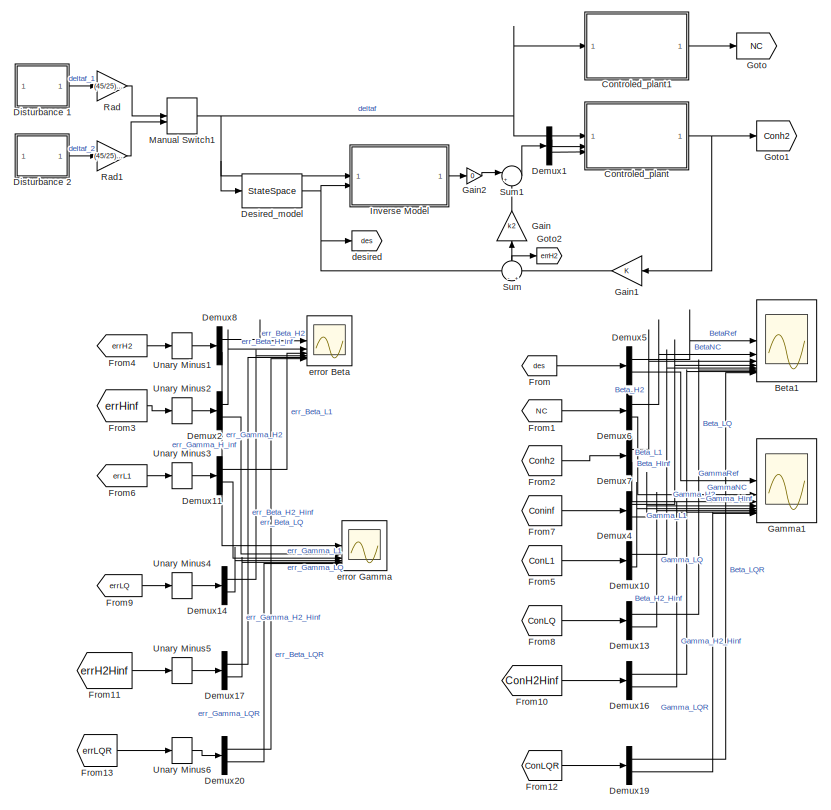
[diagram: root canvas - part 1/2, middle left region]
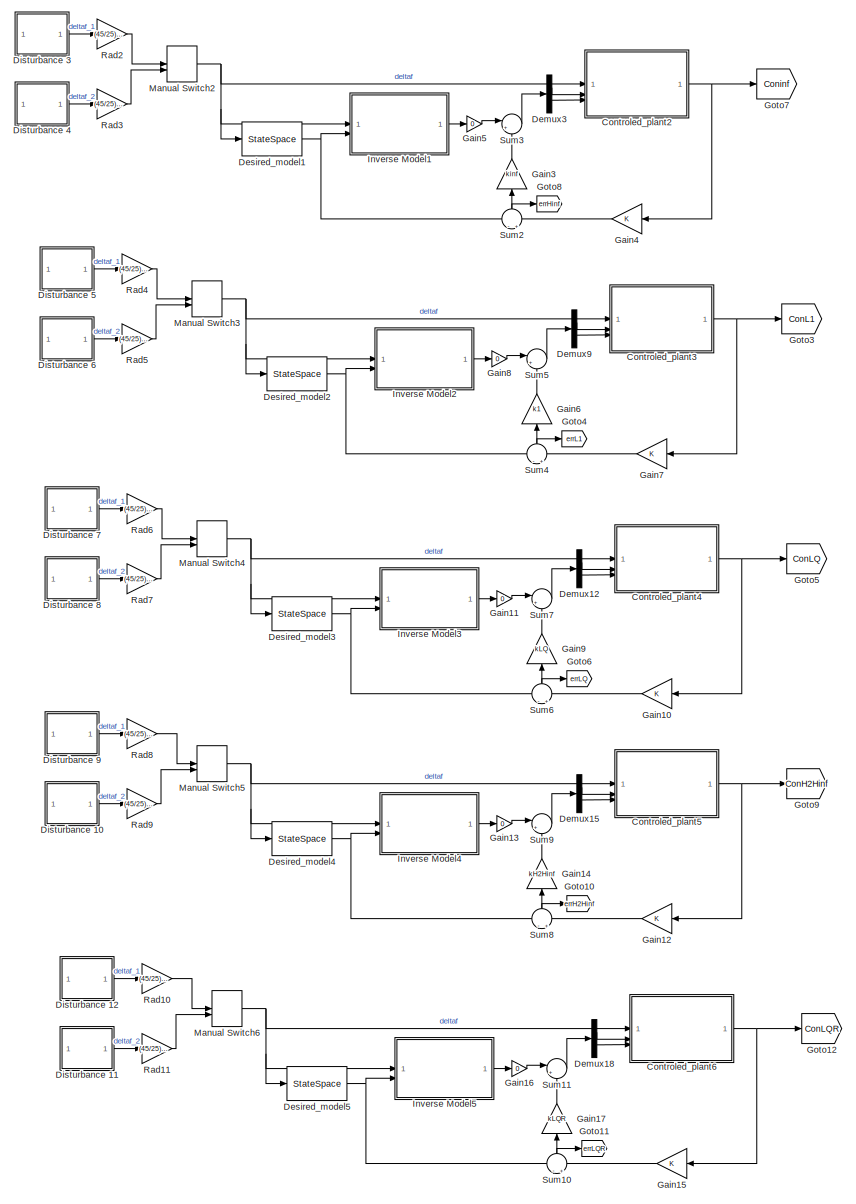
[diagram: root canvas - part 2/2, right side, full height]
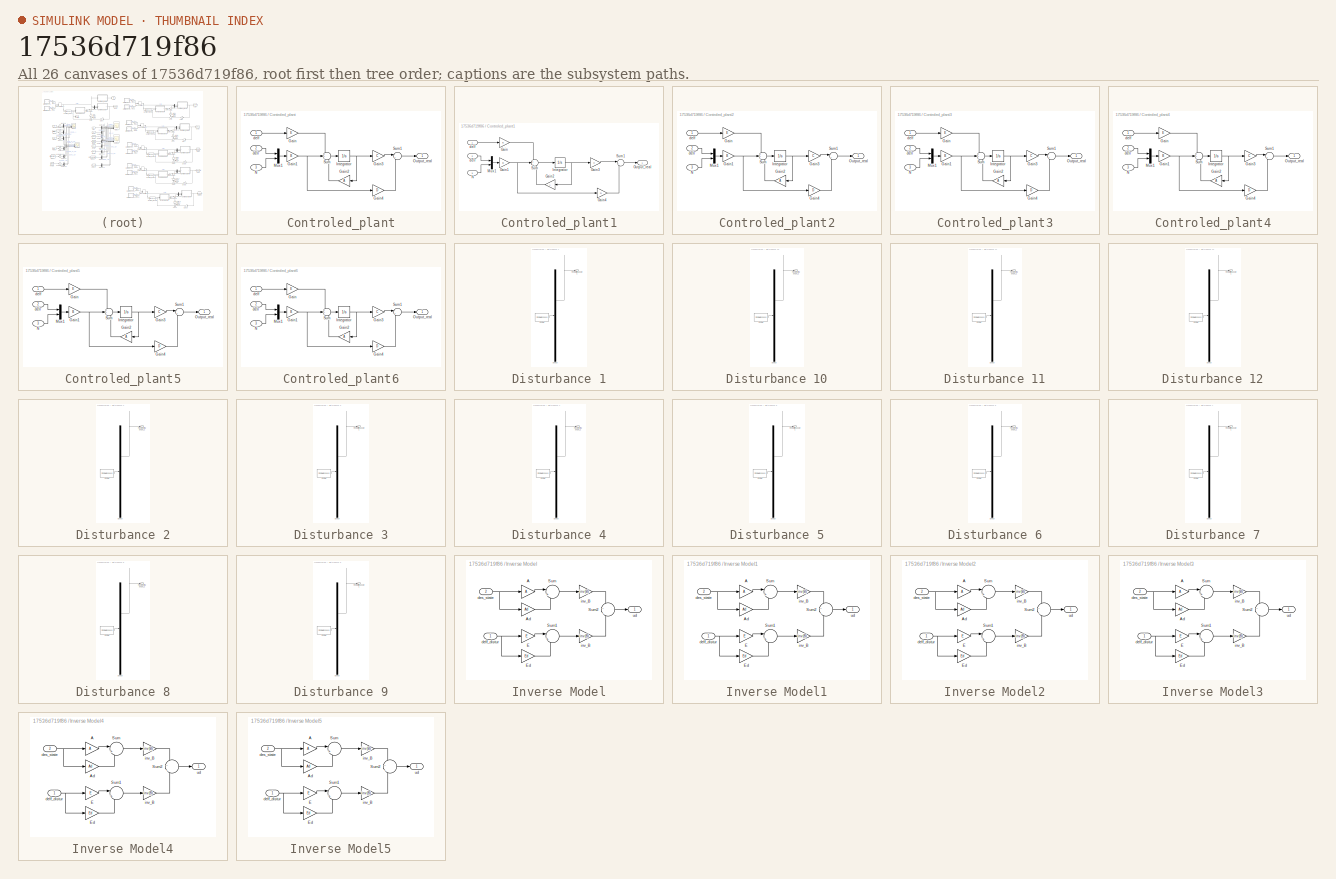
[diagram: thumbnail index - all 26 canvases of the model, root first then tree order]
MODEL slx_17536d719f86
KIND model
CONFIG AbsTol = auto
CONFIG EnableMultiTasking = off
CONFIG FixedStep = auto
CONFIG MaxStep = auto
CONFIG MinStep = auto
CONFIG RelTol = 1e-3
CONFIG SampleTimeConstraint = Unconstrained
CONFIG SolverName = VariableStepAuto
CONFIG StartTime = 0.0
CONFIG StopTime = 3
BLOCK [Scope] Beta1
  Floating = off
  NumInputPorts = 8
  ScopeSpecificationString = Simulink.scopes.TimeScopeBlockCfg('CurrentConfiguration', extmgr.ConfigurationSet(extmgr.Configuration('Core','General UI',true,'FigureColor',[1 1 1]),extmgr.Configuration('Core','Source UI',true),extmgr.Configuration('Sources','WiredSimulink',true,'DataLoggingVariableName','ScopeData1'),extmgr.Configuration('Visuals','Time Domain',true,'SerializedDisplays',{struct('MinYLimReal','-0.01402','MaxYLi...<+2376ch>
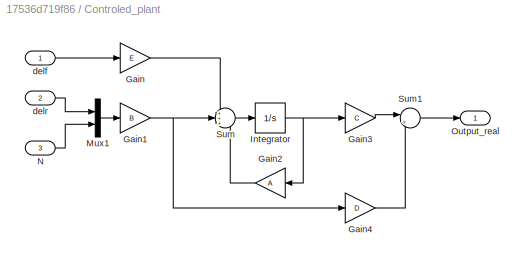
BLOCK [SubSystem] Controled_plant
BLOCK [Gain] Controled_plant/Gain
  Gain = E
  Multiplication = Matrix(K*u)
BLOCK [Gain] Controled_plant/Gain1
  Gain = B
  Multiplication = Matrix(K*u)
BLOCK [Gain] Controled_plant/Gain2
  Gain = A
  Multiplication = Matrix(K*u)
BLOCK [Gain] Controled_plant/Gain3
  Gain = C
  Multiplication = Matrix(K*u)
BLOCK [Gain] Controled_plant/Gain4
  Gain = D
  Multiplication = Matrix(K*u)
BLOCK [Integrator] Controled_plant/Integrator
  InitialCondition = x0
BLOCK [Mux] Controled_plant/Mux1
  DisplayOption = bar
  Inputs = 2
BLOCK [Inport] Controled_plant/N
  Port = 3
BLOCK [Outport] Controled_plant/Output_real
BLOCK [Sum] Controled_plant/Sum
  Inputs = +++
BLOCK [Sum] Controled_plant/Sum1
  Inputs = |++
BLOCK [Inport] Controled_plant/delf
BLOCK [Inport] Controled_plant/delr
  Port = 2
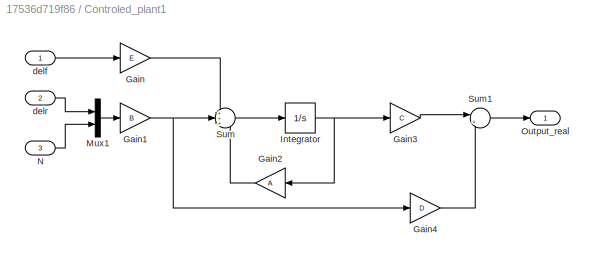
BLOCK [SubSystem] Controled_plant1
BLOCK [Gain] Controled_plant1/Gain
  Gain = E
  Multiplication = Matrix(K*u)
BLOCK [Gain] Controled_plant1/Gain1
  Gain = B
  Multiplication = Matrix(K*u)
BLOCK [Gain] Controled_plant1/Gain2
  Gain = A
  Multiplication = Matrix(K*u)
BLOCK [Gain] Controled_plant1/Gain3
  Gain = C
  Multiplication = Matrix(K*u)
BLOCK [Gain] Controled_plant1/Gain4
  Gain = D
  Multiplication = Matrix(K*u)
BLOCK [Integrator] Controled_plant1/Integrator
  InitialCondition = x0
BLOCK [Mux] Controled_plant1/Mux1
  DisplayOption = bar
  Inputs = 2
BLOCK [Inport] Controled_plant1/N
  Port = 3
BLOCK [Outport] Controled_plant1/Output_real
BLOCK [Sum] Controled_plant1/Sum
  Inputs = +++
BLOCK [Sum] Controled_plant1/Sum1
  Inputs = |++
BLOCK [Inport] Controled_plant1/delf
BLOCK [Inport] Controled_plant1/delr
  Port = 2
BLOCK [SubSystem] Controled_plant2
BLOCK [Gain] Controled_plant2/Gain
  Gain = E
  Multiplication = Matrix(K*u)
BLOCK [Gain] Controled_plant2/Gain1
  Gain = B
  Multiplication = Matrix(K*u)
BLOCK [Gain] Controled_plant2/Gain2
  Gain = A
  Multiplication = Matrix(K*u)
BLOCK [Gain] Controled_plant2/Gain3
  Gain = C
  Multiplication = Matrix(K*u)
BLOCK [Gain] Controled_plant2/Gain4
  Gain = D
  Multiplication = Matrix(K*u)
BLOCK [Integrator] Controled_plant2/Integrator
  InitialCondition = x0
BLOCK [Mux] Controled_plant2/Mux1
  DisplayOption = bar
  Inputs = 2
BLOCK [Inport] Controled_plant2/N
  Port = 3
BLOCK [Outport] Controled_plant2/Output_real
BLOCK [Sum] Controled_plant2/Sum
  Inputs = +++
BLOCK [Sum] Controled_plant2/Sum1
  Inputs = |++
BLOCK [Inport] Controled_plant2/delf
BLOCK [Inport] Controled_plant2/delr
  Port = 2
BLOCK [SubSystem] Controled_plant3
BLOCK [Gain] Controled_plant3/Gain
  Gain = E
  Multiplication = Matrix(K*u)
BLOCK [Gain] Controled_plant3/Gain1
  Gain = B
  Multiplication = Matrix(K*u)
BLOCK [Gain] Controled_plant3/Gain2
  Gain = A
  Multiplication = Matrix(K*u)
BLOCK [Gain] Controled_plant3/Gain3
  Gain = C
  Multiplication = Matrix(K*u)
BLOCK [Gain] Controled_plant3/Gain4
  Gain = D
  Multiplication = Matrix(K*u)
BLOCK [Integrator] Controled_plant3/Integrator
  InitialCondition = x0
BLOCK [Mux] Controled_plant3/Mux1
  DisplayOption = bar
  Inputs = 2
BLOCK [Inport] Controled_plant3/N
  Port = 3
BLOCK [Outport] Controled_plant3/Output_real
BLOCK [Sum] Controled_plant3/Sum
  Inputs = +++
BLOCK [Sum] Controled_plant3/Sum1
  Inputs = |++
BLOCK [Inport] Controled_plant3/delf
BLOCK [Inport] Controled_plant3/delr
  Port = 2
BLOCK [SubSystem] Controled_plant4
BLOCK [Gain] Controled_plant4/Gain
  Gain = E
  Multiplication = Matrix(K*u)
BLOCK [Gain] Controled_plant4/Gain1
  Gain = B
  Multiplication = Matrix(K*u)
BLOCK [Gain] Controled_plant4/Gain2
  Gain = A
  Multiplication = Matrix(K*u)
BLOCK [Gain] Controled_plant4/Gain3
  Gain = C
  Multiplication = Matrix(K*u)
BLOCK [Gain] Controled_plant4/Gain4
  Gain = D
  Multiplication = Matrix(K*u)
BLOCK [Integrator] Controled_plant4/Integrator
  InitialCondition = x0
BLOCK [Mux] Controled_plant4/Mux1
  DisplayOption = bar
  Inputs = 2
BLOCK [Inport] Controled_plant4/N
  Port = 3
BLOCK [Outport] Controled_plant4/Output_real
BLOCK [Sum] Controled_plant4/Sum
  Inputs = +++
BLOCK [Sum] Controled_plant4/Sum1
  Inputs = |++
BLOCK [Inport] Controled_plant4/delf
BLOCK [Inport] Controled_plant4/delr
  Port = 2
BLOCK [SubSystem] Controled_plant5
BLOCK [Gain] Controled_plant5/Gain
  Gain = E
  Multiplication = Matrix(K*u)
BLOCK [Gain] Controled_plant5/Gain1
  Gain = B
  Multiplication = Matrix(K*u)
BLOCK [Gain] Controled_plant5/Gain2
  Gain = A
  Multiplication = Matrix(K*u)
BLOCK [Gain] Controled_plant5/Gain3
  Gain = C
  Multiplication = Matrix(K*u)
BLOCK [Gain] Controled_plant5/Gain4
  Gain = D
  Multiplication = Matrix(K*u)
BLOCK [Integrator] Controled_plant5/Integrator
  InitialCondition = x0
BLOCK [Mux] Controled_plant5/Mux1
  DisplayOption = bar
  Inputs = 2
BLOCK [Inport] Controled_plant5/N
  Port = 3
BLOCK [Outport] Controled_plant5/Output_real
BLOCK [Sum] Controled_plant5/Sum
  Inputs = +++
BLOCK [Sum] Controled_plant5/Sum1
  Inputs = |++
BLOCK [Inport] Controled_plant5/delf
BLOCK [Inport] Controled_plant5/delr
  Port = 2
BLOCK [SubSystem] Controled_plant6
BLOCK [Gain] Controled_plant6/Gain
  Gain = E
  Multiplication = Matrix(K*u)
BLOCK [Gain] Controled_plant6/Gain1
  Gain = B
  Multiplication = Matrix(K*u)
BLOCK [Gain] Controled_plant6/Gain2
  Gain = A
  Multiplication = Matrix(K*u)
BLOCK [Gain] Controled_plant6/Gain3
  Gain = C
  Multiplication = Matrix(K*u)
BLOCK [Gain] Controled_plant6/Gain4
  Gain = D
  Multiplication = Matrix(K*u)
BLOCK [Integrator] Controled_plant6/Integrator
  InitialCondition = x0
BLOCK [Mux] Controled_plant6/Mux1
  DisplayOption = bar
  Inputs = 2
BLOCK [Inport] Controled_plant6/N
  Port = 3
BLOCK [Outport] Controled_plant6/Output_real
BLOCK [Sum] Controled_plant6/Sum
  Inputs = +++
BLOCK [Sum] Controled_plant6/Sum1
  Inputs = |++
BLOCK [Inport] Controled_plant6/delf
BLOCK [Inport] Controled_plant6/delr
  Port = 2
BLOCK [Demux] Demux1
  Outputs = 2
BLOCK [Demux] Demux10
  Outputs = 2
BLOCK [Demux] Demux11
  Outputs = 2
BLOCK [Demux] Demux12
  Outputs = 2
BLOCK [Demux] Demux13
  Outputs = 2
BLOCK [Demux] Demux14
  Outputs = 2
BLOCK [Demux] Demux15
  Outputs = 2
BLOCK [Demux] Demux16
  Outputs = 2
BLOCK [Demux] Demux17
  Outputs = 2
BLOCK [Demux] Demux18
  Outputs = 2
BLOCK [Demux] Demux19
  Outputs = 2
BLOCK [Demux] Demux2
  Outputs = 2
BLOCK [Demux] Demux20
  Outputs = 2
BLOCK [Demux] Demux3
  Outputs = 2
BLOCK [Demux] Demux4
  Outputs = 2
BLOCK [Demux] Demux5
  Outputs = 2
BLOCK [Demux] Demux6
  Outputs = 2
BLOCK [Demux] Demux7
  Outputs = 2
BLOCK [Demux] Demux8
  Outputs = 2
BLOCK [Demux] Demux9
  Outputs = 2
BLOCK [StateSpace] Desired_model
  A = Ad
  B = Ed
  C = [1,0;0,1]
  D = zeros(2,1)
  InitialCondition = 0
BLOCK [StateSpace] Desired_model1
  A = Ad
  B = Ed
  C = [1,0;0,1]
  D = zeros(2,1)
  InitialCondition = 0
BLOCK [StateSpace] Desired_model2
  A = Ad
  B = Ed
  C = [1,0;0,1]
  D = zeros(2,1)
  InitialCondition = 0
BLOCK [StateSpace] Desired_model3
  A = Ad
  B = Ed
  C = [1,0;0,1]
  D = zeros(2,1)
  InitialCondition = 0
BLOCK [StateSpace] Desired_model4
  A = Ad
  B = Ed
  C = [1,0;0,1]
  D = zeros(2,1)
  InitialCondition = 0
BLOCK [StateSpace] Desired_model5
  A = Ad
  B = Ed
  C = [1,0;0,1]
  D = zeros(2,1)
  InitialCondition = 0
BLOCK [SubSystem] Disturbance 1
  ClipboardFcn = sigbuilder_block('clipboard');
  CloseFcn = sigbuilder_block('close');
  ContinueFcn = sigbuilder_block('continue');
  CopyFcn = sigbuilder_block('copy');
  DeleteFcn = sigbuilder_block('delete');
  LoadFcn = sigbuilder_block('load');
  MaskHideContents = on
  ModelCloseFcn = sigbuilder_block('modelClose');
  NameChangeFcn = sigbuilder_block('namechange');
  OpenFcn = sigbuilder_block('open',[265.8 141.6 550.8 400.2 ]);
  PauseFcn = sigbuilder_block('pause');
  PreSaveFcn = sigbuilder_block('preSave');
  StartFcn = sigbuilder_block('start');
  StopFcn = sigbuilder_block('stop');
  Tag = STV Subsys
BLOCK [Demux] Disturbance 1/Demux
  DisplayOption = none
  Outputs = 1
  Tag = STV Demux
BLOCK [FromWorkspace] Disturbance 1/FromWs
  Tag = STV FromWs
  VariableName = tuvar
BLOCK [Outport] Disturbance 1/Front sterring angle 1
  Tag = STV Outport
BLOCK [SubSystem] Disturbance 10
  ClipboardFcn = sigbuilder_block('clipboard');
  CloseFcn = sigbuilder_block('close');
  ContinueFcn = sigbuilder_block('continue');
  CopyFcn = sigbuilder_block('copy');
  DeleteFcn = sigbuilder_block('delete');
  LoadFcn = sigbuilder_block('load');
  MaskHideContents = on
  ModelCloseFcn = sigbuilder_block('modelClose');
  NameChangeFcn = sigbuilder_block('namechange');
  OpenFcn = sigbuilder_block('open',[265.8 141.6 550.8 400.2 ]);
  PauseFcn = sigbuilder_block('pause');
  PreSaveFcn = sigbuilder_block('preSave');
  StartFcn = sigbuilder_block('start');
  StopFcn = sigbuilder_block('stop');
  Tag = STV Subsys
BLOCK [Demux] Disturbance 10/Demux
  DisplayOption = none
  Outputs = 1
  Tag = STV Demux
BLOCK [FromWorkspace] Disturbance 10/FromWs
  Tag = STV FromWs
  VariableName = tuvar
BLOCK [Outport] Disturbance 10/Front steering angel_2
  Tag = STV Outport
BLOCK [SubSystem] Disturbance 11
  ClipboardFcn = sigbuilder_block('clipboard');
  CloseFcn = sigbuilder_block('close');
  ContinueFcn = sigbuilder_block('continue');
  CopyFcn = sigbuilder_block('copy');
  DeleteFcn = sigbuilder_block('delete');
  LoadFcn = sigbuilder_block('load');
  MaskHideContents = on
  ModelCloseFcn = sigbuilder_block('modelClose');
  NameChangeFcn = sigbuilder_block('namechange');
  OpenFcn = sigbuilder_block('open',[265.8 141.6 550.8 400.2 ]);
  PauseFcn = sigbuilder_block('pause');
  PreSaveFcn = sigbuilder_block('preSave');
  StartFcn = sigbuilder_block('start');
  StopFcn = sigbuilder_block('stop');
  Tag = STV Subsys
BLOCK [Demux] Disturbance 11/Demux
  DisplayOption = none
  Outputs = 1
  Tag = STV Demux
BLOCK [FromWorkspace] Disturbance 11/FromWs
  Tag = STV FromWs
  VariableName = tuvar
BLOCK [Outport] Disturbance 11/Front steering angel_2
  Tag = STV Outport
BLOCK [SubSystem] Disturbance 12
  ClipboardFcn = sigbuilder_block('clipboard');
  CloseFcn = sigbuilder_block('close');
  ContinueFcn = sigbuilder_block('continue');
  CopyFcn = sigbuilder_block('copy');
  DeleteFcn = sigbuilder_block('delete');
  LoadFcn = sigbuilder_block('load');
  MaskHideContents = on
  ModelCloseFcn = sigbuilder_block('modelClose');
  NameChangeFcn = sigbuilder_block('namechange');
  OpenFcn = sigbuilder_block('open',[265.8 141.6 550.8 400.2 ]);
  PauseFcn = sigbuilder_block('pause');
  PreSaveFcn = sigbuilder_block('preSave');
  StartFcn = sigbuilder_block('start');
  StopFcn = sigbuilder_block('stop');
  Tag = STV Subsys
BLOCK [Demux] Disturbance 12/Demux
  DisplayOption = none
  Outputs = 1
  Tag = STV Demux
BLOCK [FromWorkspace] Disturbance 12/FromWs
  Tag = STV FromWs
  VariableName = tuvar
BLOCK [Outport] Disturbance 12/Front sterring angle 1
  Tag = STV Outport
BLOCK [SubSystem] Disturbance 2
  ClipboardFcn = sigbuilder_block('clipboard');
  CloseFcn = sigbuilder_block('close');
  ContinueFcn = sigbuilder_block('continue');
  CopyFcn = sigbuilder_block('copy');
  DeleteFcn = sigbuilder_block('delete');
  LoadFcn = sigbuilder_block('load');
  MaskHideContents = on
  ModelCloseFcn = sigbuilder_block('modelClose');
  NameChangeFcn = sigbuilder_block('namechange');
  OpenFcn = sigbuilder_block('open',[265.8 141.6 550.8 400.2 ]);
  PauseFcn = sigbuilder_block('pause');
  PreSaveFcn = sigbuilder_block('preSave');
  StartFcn = sigbuilder_block('start');
  StopFcn = sigbuilder_block('stop');
  Tag = STV Subsys
BLOCK [Demux] Disturbance 2/Demux
  DisplayOption = none
  Outputs = 1
  Tag = STV Demux
BLOCK [FromWorkspace] Disturbance 2/FromWs
  Tag = STV FromWs
  VariableName = tuvar
BLOCK [Outport] Disturbance 2/Front steering angel_2
  Tag = STV Outport
BLOCK [SubSystem] Disturbance 3
  ClipboardFcn = sigbuilder_block('clipboard');
  CloseFcn = sigbuilder_block('close');
  ContinueFcn = sigbuilder_block('continue');
  CopyFcn = sigbuilder_block('copy');
  DeleteFcn = sigbuilder_block('delete');
  LoadFcn = sigbuilder_block('load');
  MaskHideContents = on
  ModelCloseFcn = sigbuilder_block('modelClose');
  NameChangeFcn = sigbuilder_block('namechange');
  OpenFcn = sigbuilder_block('open',[265.8 141.6 550.8 400.2 ]);
  PauseFcn = sigbuilder_block('pause');
  PreSaveFcn = sigbuilder_block('preSave');
  StartFcn = sigbuilder_block('start');
  StopFcn = sigbuilder_block('stop');
  Tag = STV Subsys
BLOCK [Demux] Disturbance 3/Demux
  DisplayOption = none
  Outputs = 1
  Tag = STV Demux
BLOCK [FromWorkspace] Disturbance 3/FromWs
  Tag = STV FromWs
  VariableName = tuvar
BLOCK [Outport] Disturbance 3/Front sterring angle 1
  Tag = STV Outport
BLOCK [SubSystem] Disturbance 4
  ClipboardFcn = sigbuilder_block('clipboard');
  CloseFcn = sigbuilder_block('close');
  ContinueFcn = sigbuilder_block('continue');
  CopyFcn = sigbuilder_block('copy');
  DeleteFcn = sigbuilder_block('delete');
  LoadFcn = sigbuilder_block('load');
  MaskHideContents = on
  ModelCloseFcn = sigbuilder_block('modelClose');
  NameChangeFcn = sigbuilder_block('namechange');
  OpenFcn = sigbuilder_block('open',[265.8 141.6 550.8 400.2 ]);
  PauseFcn = sigbuilder_block('pause');
  PreSaveFcn = sigbuilder_block('preSave');
  StartFcn = sigbuilder_block('start');
  StopFcn = sigbuilder_block('stop');
  Tag = STV Subsys
BLOCK [Demux] Disturbance 4/Demux
  DisplayOption = none
  Outputs = 1
  Tag = STV Demux
BLOCK [FromWorkspace] Disturbance 4/FromWs
  Tag = STV FromWs
  VariableName = tuvar
BLOCK [Outport] Disturbance 4/Front steering angel_2
  Tag = STV Outport
BLOCK [SubSystem] Disturbance 5
  ClipboardFcn = sigbuilder_block('clipboard');
  CloseFcn = sigbuilder_block('close');
  ContinueFcn = sigbuilder_block('continue');
  CopyFcn = sigbuilder_block('copy');
  DeleteFcn = sigbuilder_block('delete');
  LoadFcn = sigbuilder_block('load');
  MaskHideContents = on
  ModelCloseFcn = sigbuilder_block('modelClose');
  NameChangeFcn = sigbuilder_block('namechange');
  OpenFcn = sigbuilder_block('open',[265.8 141.6 550.8 400.2 ]);
  PauseFcn = sigbuilder_block('pause');
  PreSaveFcn = sigbuilder_block('preSave');
  StartFcn = sigbuilder_block('start');
  StopFcn = sigbuilder_block('stop');
  Tag = STV Subsys
BLOCK [Demux] Disturbance 5/Demux
  DisplayOption = none
  Outputs = 1
  Tag = STV Demux
BLOCK [FromWorkspace] Disturbance 5/FromWs
  Tag = STV FromWs
  VariableName = tuvar
BLOCK [Outport] Disturbance 5/Front sterring angle 1
  Tag = STV Outport
BLOCK [SubSystem] Disturbance 6
  ClipboardFcn = sigbuilder_block('clipboard');
  CloseFcn = sigbuilder_block('close');
  ContinueFcn = sigbuilder_block('continue');
  CopyFcn = sigbuilder_block('copy');
  DeleteFcn = sigbuilder_block('delete');
  LoadFcn = sigbuilder_block('load');
  MaskHideContents = on
  ModelCloseFcn = sigbuilder_block('modelClose');
  NameChangeFcn = sigbuilder_block('namechange');
  OpenFcn = sigbuilder_block('open',[265.8 141.6 550.8 400.2 ]);
  PauseFcn = sigbuilder_block('pause');
  PreSaveFcn = sigbuilder_block('preSave');
  StartFcn = sigbuilder_block('start');
  StopFcn = sigbuilder_block('stop');
  Tag = STV Subsys
BLOCK [Demux] Disturbance 6/Demux
  DisplayOption = none
  Outputs = 1
  Tag = STV Demux
BLOCK [FromWorkspace] Disturbance 6/FromWs
  Tag = STV FromWs
  VariableName = tuvar
BLOCK [Outport] Disturbance 6/Front steering angel_2
  Tag = STV Outport
BLOCK [SubSystem] Disturbance 7
  ClipboardFcn = sigbuilder_block('clipboard');
  CloseFcn = sigbuilder_block('close');
  ContinueFcn = sigbuilder_block('continue');
  CopyFcn = sigbuilder_block('copy');
  DeleteFcn = sigbuilder_block('delete');
  LoadFcn = sigbuilder_block('load');
  MaskHideContents = on
  ModelCloseFcn = sigbuilder_block('modelClose');
  NameChangeFcn = sigbuilder_block('namechange');
  OpenFcn = sigbuilder_block('open',[265.8 141.6 550.8 400.2 ]);
  PauseFcn = sigbuilder_block('pause');
  PreSaveFcn = sigbuilder_block('preSave');
  StartFcn = sigbuilder_block('start');
  StopFcn = sigbuilder_block('stop');
  Tag = STV Subsys
BLOCK [Demux] Disturbance 7/Demux
  DisplayOption = none
  Outputs = 1
  Tag = STV Demux
BLOCK [FromWorkspace] Disturbance 7/FromWs
  Tag = STV FromWs
  VariableName = tuvar
BLOCK [Outport] Disturbance 7/Front sterring angle 1
  Tag = STV Outport
BLOCK [SubSystem] Disturbance 8
  ClipboardFcn = sigbuilder_block('clipboard');
  CloseFcn = sigbuilder_block('close');
  ContinueFcn = sigbuilder_block('continue');
  CopyFcn = sigbuilder_block('copy');
  DeleteFcn = sigbuilder_block('delete');
  LoadFcn = sigbuilder_block('load');
  MaskHideContents = on
  ModelCloseFcn = sigbuilder_block('modelClose');
  NameChangeFcn = sigbuilder_block('namechange');
  OpenFcn = sigbuilder_block('open',[265.8 141.6 550.8 400.2 ]);
  PauseFcn = sigbuilder_block('pause');
  PreSaveFcn = sigbuilder_block('preSave');
  StartFcn = sigbuilder_block('start');
  StopFcn = sigbuilder_block('stop');
  Tag = STV Subsys
BLOCK [Demux] Disturbance 8/Demux
  DisplayOption = none
  Outputs = 1
  Tag = STV Demux
BLOCK [FromWorkspace] Disturbance 8/FromWs
  Tag = STV FromWs
  VariableName = tuvar
BLOCK [Outport] Disturbance 8/Front steering angel_2
  Tag = STV Outport
BLOCK [SubSystem] Disturbance 9
  ClipboardFcn = sigbuilder_block('clipboard');
  CloseFcn = sigbuilder_block('close');
  ContinueFcn = sigbuilder_block('continue');
  CopyFcn = sigbuilder_block('copy');
  DeleteFcn = sigbuilder_block('delete');
  LoadFcn = sigbuilder_block('load');
  MaskHideContents = on
  ModelCloseFcn = sigbuilder_block('modelClose');
  NameChangeFcn = sigbuilder_block('namechange');
  OpenFcn = sigbuilder_block('open',[265.8 141.6 550.8 400.2 ]);
  PauseFcn = sigbuilder_block('pause');
  PreSaveFcn = sigbuilder_block('preSave');
  StartFcn = sigbuilder_block('start');
  StopFcn = sigbuilder_block('stop');
  Tag = STV Subsys
BLOCK [Demux] Disturbance 9/Demux
  DisplayOption = none
  Outputs = 1
  Tag = STV Demux
BLOCK [FromWorkspace] Disturbance 9/FromWs
  Tag = STV FromWs
  VariableName = tuvar
BLOCK [Outport] Disturbance 9/Front sterring angle 1
  Tag = STV Outport
BLOCK [From] From
  GotoTag = des
BLOCK [From] From1
  GotoTag = NC
BLOCK [From] From10
  GotoTag = ConH2Hinf
BLOCK [From] From11
  GotoTag = errH2Hinf
BLOCK [From] From12
  GotoTag = ConLQR
BLOCK [From] From13
  GotoTag = errLQR
BLOCK [From] From2
  GotoTag = Conh2
BLOCK [From] From3
  GotoTag = errHinf
BLOCK [From] From4
  GotoTag = errH2
BLOCK [From] From5
  GotoTag = ConL1
BLOCK [From] From6
  GotoTag = errL1
BLOCK [From] From7
  GotoTag = Coninf
BLOCK [From] From8
  GotoTag = ConLQ
BLOCK [From] From9
  GotoTag = errLQ
BLOCK [Gain] Gain
  Gain = k2
  Multiplication = Matrix(K*u)
  NameLocation = right
BLOCK [Gain] Gain1
  Multiplication = Matrix(K*u)
BLOCK [Gain] Gain10
  Multiplication = Matrix(K*u)
BLOCK [Gain] Gain11
  Gain = 0
  Multiplication = Matrix(K*u)
BLOCK [Gain] Gain12
  Multiplication = Matrix(K*u)
BLOCK [Gain] Gain13
  Gain = 0
  Multiplication = Matrix(K*u)
BLOCK [Gain] Gain14
  Gain = kH2Hinf
  Multiplication = Matrix(K*u)
  NameLocation = right
BLOCK [Gain] Gain15
  Multiplication = Matrix(K*u)
BLOCK [Gain] Gain16
  Gain = 0
  Multiplication = Matrix(K*u)
BLOCK [Gain] Gain17
  Gain = kLQR
  Multiplication = Matrix(K*u)
  NameLocation = right
BLOCK [Gain] Gain2
  Gain = 0
  Multiplication = Matrix(K*u)
BLOCK [Gain] Gain3
  Gain = kinf
  Multiplication = Matrix(K*u)
  NameLocation = right
BLOCK [Gain] Gain4
  Multiplication = Matrix(K*u)
BLOCK [Gain] Gain5
  Gain = 0
  Multiplication = Matrix(K*u)
BLOCK [Gain] Gain6
  Gain = k1
  Multiplication = Matrix(K*u)
  NameLocation = right
BLOCK [Gain] Gain7
  Multiplication = Matrix(K*u)
BLOCK [Gain] Gain8
  Gain = 0
  Multiplication = Matrix(K*u)
BLOCK [Gain] Gain9
  Gain = kLQ
  Multiplication = Matrix(K*u)
  NameLocation = right
BLOCK [Scope] Gamma1
  Floating = off
  NumInputPorts = 8
  ScopeSpecificationString = Simulink.scopes.TimeScopeBlockCfg('CurrentConfiguration', extmgr.ConfigurationSet(extmgr.Configuration('Core','General UI',true,'FigureColor',[1 1 1]),extmgr.Configuration('Core','Source UI',true),extmgr.Configuration('Sources','WiredSimulink',true,'DataLoggingVariableName','ScopeData2'),extmgr.Configuration('Visuals','Time Domain',true,'SerializedDisplays',{struct('MinYLimReal','-0.11225','MaxYLi...<+2012ch>
BLOCK [Goto] Goto
  GotoTag = NC
BLOCK [Goto] Goto1
  GotoTag = Conh2
BLOCK [Goto] Goto10
  GotoTag = errH2Hinf
BLOCK [Goto] Goto11
  GotoTag = errLQR
BLOCK [Goto] Goto12
  GotoTag = ConLQR
BLOCK [Goto] Goto2
  GotoTag = errH2
BLOCK [Goto] Goto3
  GotoTag = ConL1
BLOCK [Goto] Goto4
  GotoTag = errL1
BLOCK [Goto] Goto5
  GotoTag = ConLQ
BLOCK [Goto] Goto6
  GotoTag = errLQ
BLOCK [Goto] Goto7
  GotoTag = Coninf
BLOCK [Goto] Goto8
  GotoTag = errHinf
BLOCK [Goto] Goto9
  GotoTag = ConH2Hinf
BLOCK [SubSystem] Inverse Model
BLOCK [Gain] Inverse Model/A
  Gain = A
  Multiplication = Matrix(K*u)
BLOCK [Gain] Inverse Model/Ad
  Gain = Ad
  Multiplication = Matrix(K*u)
BLOCK [Gain] Inverse Model/E
  Gain = E
  Multiplication = Matrix(K*u)
BLOCK [Gain] Inverse Model/Ed
  Gain = Ed
  Multiplication = Matrix(K*u)
BLOCK [Sum] Inverse Model/Sum
  Inputs = |+-
BLOCK [Sum] Inverse Model/Sum1
  Inputs = |+-
BLOCK [Sum] Inverse Model/Sum2
  Inputs = -|-
BLOCK [Inport] Inverse Model/delf_distur
BLOCK [Inport] Inverse Model/des_state
  Port = 2
BLOCK [Gain] Inverse Model/inv_B
  Gain = inv(B)
  Multiplication = Matrix(K*u)
BLOCK [Gain] Inverse Model/inv_B 
  Gain = inv(B)
  Multiplication = Matrix(K*u)
BLOCK [Outport] Inverse Model/ud
BLOCK [SubSystem] Inverse Model1
BLOCK [Gain] Inverse Model1/A
  Gain = A
  Multiplication = Matrix(K*u)
BLOCK [Gain] Inverse Model1/Ad
  Gain = Ad
  Multiplication = Matrix(K*u)
BLOCK [Gain] Inverse Model1/E
  Gain = E
  Multiplication = Matrix(K*u)
BLOCK [Gain] Inverse Model1/Ed
  Gain = Ed
  Multiplication = Matrix(K*u)
BLOCK [Sum] Inverse Model1/Sum
  Inputs = |+-
BLOCK [Sum] Inverse Model1/Sum1
  Inputs = |+-
BLOCK [Sum] Inverse Model1/Sum2
  Inputs = -|-
BLOCK [Inport] Inverse Model1/delf_distur
BLOCK [Inport] Inverse Model1/des_state
  Port = 2
BLOCK [Gain] Inverse Model1/inv_B
  Gain = inv(B)
  Multiplication = Matrix(K*u)
BLOCK [Gain] Inverse Model1/inv_B 
  Gain = inv(B)
  Multiplication = Matrix(K*u)
BLOCK [Outport] Inverse Model1/ud
BLOCK [SubSystem] Inverse Model2
BLOCK [Gain] Inverse Model2/A
  Gain = A
  Multiplication = Matrix(K*u)
BLOCK [Gain] Inverse Model2/Ad
  Gain = Ad
  Multiplication = Matrix(K*u)
BLOCK [Gain] Inverse Model2/E
  Gain = E
  Multiplication = Matrix(K*u)
BLOCK [Gain] Inverse Model2/Ed
  Gain = Ed
  Multiplication = Matrix(K*u)
BLOCK [Sum] Inverse Model2/Sum
  Inputs = |+-
BLOCK [Sum] Inverse Model2/Sum1
  Inputs = |+-
BLOCK [Sum] Inverse Model2/Sum2
  Inputs = -|-
BLOCK [Inport] Inverse Model2/delf_distur
BLOCK [Inport] Inverse Model2/des_state
  Port = 2
BLOCK [Gain] Inverse Model2/inv_B
  Gain = inv(B)
  Multiplication = Matrix(K*u)
BLOCK [Gain] Inverse Model2/inv_B 
  Gain = inv(B)
  Multiplication = Matrix(K*u)
BLOCK [Outport] Inverse Model2/ud
BLOCK [SubSystem] Inverse Model3
BLOCK [Gain] Inverse Model3/A
  Gain = A
  Multiplication = Matrix(K*u)
BLOCK [Gain] Inverse Model3/Ad
  Gain = Ad
  Multiplication = Matrix(K*u)
BLOCK [Gain] Inverse Model3/E
  Gain = E
  Multiplication = Matrix(K*u)
BLOCK [Gain] Inverse Model3/Ed
  Gain = Ed
  Multiplication = Matrix(K*u)
BLOCK [Sum] Inverse Model3/Sum
  Inputs = |+-
BLOCK [Sum] Inverse Model3/Sum1
  Inputs = |+-
BLOCK [Sum] Inverse Model3/Sum2
  Inputs = -|-
BLOCK [Inport] Inverse Model3/delf_distur
BLOCK [Inport] Inverse Model3/des_state
  Port = 2
BLOCK [Gain] Inverse Model3/inv_B
  Gain = inv(B)
  Multiplication = Matrix(K*u)
BLOCK [Gain] Inverse Model3/inv_B 
  Gain = inv(B)
  Multiplication = Matrix(K*u)
BLOCK [Outport] Inverse Model3/ud
BLOCK [SubSystem] Inverse Model4
BLOCK [Gain] Inverse Model4/A
  Gain = A
  Multiplication = Matrix(K*u)
BLOCK [Gain] Inverse Model4/Ad
  Gain = Ad
  Multiplication = Matrix(K*u)
BLOCK [Gain] Inverse Model4/E
  Gain = E
  Multiplication = Matrix(K*u)
BLOCK [Gain] Inverse Model4/Ed
  Gain = Ed
  Multiplication = Matrix(K*u)
BLOCK [Sum] Inverse Model4/Sum
  Inputs = |+-
BLOCK [Sum] Inverse Model4/Sum1
  Inputs = |+-
BLOCK [Sum] Inverse Model4/Sum2
  Inputs = -|-
BLOCK [Inport] Inverse Model4/delf_distur
BLOCK [Inport] Inverse Model4/des_state
  Port = 2
BLOCK [Gain] Inverse Model4/inv_B
  Gain = inv(B)
  Multiplication = Matrix(K*u)
BLOCK [Gain] Inverse Model4/inv_B 
  Gain = inv(B)
  Multiplication = Matrix(K*u)
BLOCK [Outport] Inverse Model4/ud
BLOCK [SubSystem] Inverse Model5
BLOCK [Gain] Inverse Model5/A
  Gain = A
  Multiplication = Matrix(K*u)
BLOCK [Gain] Inverse Model5/Ad
  Gain = Ad
  Multiplication = Matrix(K*u)
BLOCK [Gain] Inverse Model5/E
  Gain = E
  Multiplication = Matrix(K*u)
BLOCK [Gain] Inverse Model5/Ed
  Gain = Ed
  Multiplication = Matrix(K*u)
BLOCK [Sum] Inverse Model5/Sum
  Inputs = |+-
BLOCK [Sum] Inverse Model5/Sum1
  Inputs = |+-
BLOCK [Sum] Inverse Model5/Sum2
  Inputs = -|-
BLOCK [Inport] Inverse Model5/delf_distur
BLOCK [Inport] Inverse Model5/des_state
  Port = 2
BLOCK [Gain] Inverse Model5/inv_B
  Gain = inv(B)
  Multiplication = Matrix(K*u)
BLOCK [Gain] Inverse Model5/inv_B 
  Gain = inv(B)
  Multiplication = Matrix(K*u)
BLOCK [Outport] Inverse Model5/ud
BLOCK [ManualSwitch] Manual Switch1
  CurrentSetting = 0
BLOCK [ManualSwitch] Manual Switch2
  CurrentSetting = 0
BLOCK [ManualSwitch] Manual Switch3
  CurrentSetting = 0
BLOCK [ManualSwitch] Manual Switch4
  CurrentSetting = 0
BLOCK [ManualSwitch] Manual Switch5
  CurrentSetting = 0
BLOCK [ManualSwitch] Manual Switch6
  CurrentSetting = 0
BLOCK [Gain] Rad
  Gain = (45/25)*(pi/180)
BLOCK [Gain] Rad1
  Gain = (45/25)*(pi/180)
BLOCK [Gain] Rad10
  Gain = (45/25)*(pi/180)
BLOCK [Gain] Rad11
  Gain = (45/25)*(pi/180)
BLOCK [Gain] Rad2
  Gain = (45/25)*(pi/180)
BLOCK [Gain] Rad3
  Gain = (45/25)*(pi/180)
BLOCK [Gain] Rad4
  Gain = (45/25)*(pi/180)
BLOCK [Gain] Rad5
  Gain = (45/25)*(pi/180)
BLOCK [Gain] Rad6
  Gain = (45/25)*(pi/180)
BLOCK [Gain] Rad7
  Gain = (45/25)*(pi/180)
BLOCK [Gain] Rad8
  Gain = (45/25)*(pi/180)
BLOCK [Gain] Rad9
  Gain = (45/25)*(pi/180)
BLOCK [Sum] Sum
  Inputs = -|+
  NameLocation = right
BLOCK [Sum] Sum1
  Inputs = |++
BLOCK [Sum] Sum10
  Inputs = -|+
  NameLocation = right
BLOCK [Sum] Sum11
  Inputs = |++
BLOCK [Sum] Sum2
  Inputs = -|+
  NameLocation = right
BLOCK [Sum] Sum3
  Inputs = |++
BLOCK [Sum] Sum4
  Inputs = -|+
  NameLocation = right
BLOCK [Sum] Sum5
  Inputs = |++
BLOCK [Sum] Sum6
  Inputs = -|+
  NameLocation = right
BLOCK [Sum] Sum7
  Inputs = |++
BLOCK [Sum] Sum8
  Inputs = -|+
  NameLocation = right
BLOCK [Sum] Sum9
  Inputs = |++
BLOCK [UnaryMinus] Unary Minus1
BLOCK [UnaryMinus] Unary Minus2
BLOCK [UnaryMinus] Unary Minus3
BLOCK [UnaryMinus] Unary Minus4
BLOCK [UnaryMinus] Unary Minus5
BLOCK [UnaryMinus] Unary Minus6
BLOCK [Goto] desired
  GotoTag = des
BLOCK [Scope] error Beta
  Floating = off
  NumInputPorts = 6
  ScopeSpecificationString = Simulink.scopes.TimeScopeBlockCfg('CurrentConfiguration', extmgr.ConfigurationSet(extmgr.Configuration('Core','General UI',true,'FigureColor',[1 1 1]),extmgr.Configuration('Core','Source UI',true),extmgr.Configuration('Sources','WiredSimulink',true,'DataLoggingVariableName','ScopeData3'),extmgr.Configuration('Visuals','Time Domain',true,'SerializedDisplays',{struct('MinYLimReal','-0.00749','MaxYLi...<+2269ch>
BLOCK [Scope] error Gamma
  Floating = off
  NumInputPorts = 6
  ScopeSpecificationString = Simulink.scopes.TimeScopeBlockCfg('CurrentConfiguration', extmgr.ConfigurationSet(extmgr.Configuration('Core','General UI',true,'FigureColor',[1 1 1]),extmgr.Configuration('Core','Source UI',true),extmgr.Configuration('Sources','WiredSimulink',true),extmgr.Configuration('Visuals','Time Domain',true,'SerializedDisplays',{struct('MinYLimReal','-0.00354','MaxYLimReal','0.00408','YLabelReal','','MinYL...<+2252ch>
NET Controled_plant/Gain1:1 -> Controled_plant/Gain4:1, Controled_plant/Sum:2
LINE Controled_plant/Gain2:1 -> Controled_plant/Sum:3
LINE Controled_plant/Gain3:1 -> Controled_plant/Sum1:1
LINE Controled_plant/Gain4:1 -> Controled_plant/Sum1:2
LINE Controled_plant/Gain:1 -> Controled_plant/Sum:1
NET Controled_plant/Integrator:1 -> Controled_plant/Gain2:1, Controled_plant/Gain3:1
LINE Controled_plant/Mux1:1 -> Controled_plant/Gain1:1
LINE Controled_plant/N:1 -> Controled_plant/Mux1:2
LINE Controled_plant/Sum1:1 -> Controled_plant/Output_real:1
LINE Controled_plant/Sum:1 -> Controled_plant/Integrator:1
LINE Controled_plant/delf:1 -> Controled_plant/Gain:1
LINE Controled_plant/delr:1 -> Controled_plant/Mux1:1
NET Controled_plant1/Gain1:1 -> Controled_plant1/Gain4:1, Controled_plant1/Sum:2
LINE Controled_plant1/Gain2:1 -> Controled_plant1/Sum:3
LINE Controled_plant1/Gain3:1 -> Controled_plant1/Sum1:1
LINE Controled_plant1/Gain4:1 -> Controled_plant1/Sum1:2
LINE Controled_plant1/Gain:1 -> Controled_plant1/Sum:1
NET Controled_plant1/Integrator:1 -> Controled_plant1/Gain2:1, Controled_plant1/Gain3:1
LINE Controled_plant1/Mux1:1 -> Controled_plant1/Gain1:1
LINE Controled_plant1/N:1 -> Controled_plant1/Mux1:2
LINE Controled_plant1/Sum1:1 -> Controled_plant1/Output_real:1
LINE Controled_plant1/Sum:1 -> Controled_plant1/Integrator:1
LINE Controled_plant1/delf:1 -> Controled_plant1/Gain:1
LINE Controled_plant1/delr:1 -> Controled_plant1/Mux1:1
LINE Controled_plant1:1 -> Goto:1
NET Controled_plant2/Gain1:1 -> Controled_plant2/Gain4:1, Controled_plant2/Sum:2
LINE Controled_plant2/Gain2:1 -> Controled_plant2/Sum:3
LINE Controled_plant2/Gain3:1 -> Controled_plant2/Sum1:1
LINE Controled_plant2/Gain4:1 -> Controled_plant2/Sum1:2
LINE Controled_plant2/Gain:1 -> Controled_plant2/Sum:1
NET Controled_plant2/Integrator:1 -> Controled_plant2/Gain2:1, Controled_plant2/Gain3:1
LINE Controled_plant2/Mux1:1 -> Controled_plant2/Gain1:1
LINE Controled_plant2/N:1 -> Controled_plant2/Mux1:2
LINE Controled_plant2/Sum1:1 -> Controled_plant2/Output_real:1
LINE Controled_plant2/Sum:1 -> Controled_plant2/Integrator:1
LINE Controled_plant2/delf:1 -> Controled_plant2/Gain:1
LINE Controled_plant2/delr:1 -> Controled_plant2/Mux1:1
NET Controled_plant2:1 -> Gain4:1, Goto7:1
NET Controled_plant3/Gain1:1 -> Controled_plant3/Gain4:1, Controled_plant3/Sum:2
LINE Controled_plant3/Gain2:1 -> Controled_plant3/Sum:3
LINE Controled_plant3/Gain3:1 -> Controled_plant3/Sum1:1
LINE Controled_plant3/Gain4:1 -> Controled_plant3/Sum1:2
LINE Controled_plant3/Gain:1 -> Controled_plant3/Sum:1
NET Controled_plant3/Integrator:1 -> Controled_plant3/Gain2:1, Controled_plant3/Gain3:1
LINE Controled_plant3/Mux1:1 -> Controled_plant3/Gain1:1
LINE Controled_plant3/N:1 -> Controled_plant3/Mux1:2
LINE Controled_plant3/Sum1:1 -> Controled_plant3/Output_real:1
LINE Controled_plant3/Sum:1 -> Controled_plant3/Integrator:1
LINE Controled_plant3/delf:1 -> Controled_plant3/Gain:1
LINE Controled_plant3/delr:1 -> Controled_plant3/Mux1:1
NET Controled_plant3:1 -> Gain7:1, Goto3:1
NET Controled_plant4/Gain1:1 -> Controled_plant4/Gain4:1, Controled_plant4/Sum:2
LINE Controled_plant4/Gain2:1 -> Controled_plant4/Sum:3
LINE Controled_plant4/Gain3:1 -> Controled_plant4/Sum1:1
LINE Controled_plant4/Gain4:1 -> Controled_plant4/Sum1:2
LINE Controled_plant4/Gain:1 -> Controled_plant4/Sum:1
NET Controled_plant4/Integrator:1 -> Controled_plant4/Gain2:1, Controled_plant4/Gain3:1
LINE Controled_plant4/Mux1:1 -> Controled_plant4/Gain1:1
LINE Controled_plant4/N:1 -> Controled_plant4/Mux1:2
LINE Controled_plant4/Sum1:1 -> Controled_plant4/Output_real:1
LINE Controled_plant4/Sum:1 -> Controled_plant4/Integrator:1
LINE Controled_plant4/delf:1 -> Controled_plant4/Gain:1
LINE Controled_plant4/delr:1 -> Controled_plant4/Mux1:1
NET Controled_plant4:1 -> Gain10:1, Goto5:1
NET Controled_plant5/Gain1:1 -> Controled_plant5/Gain4:1, Controled_plant5/Sum:2
LINE Controled_plant5/Gain2:1 -> Controled_plant5/Sum:3
LINE Controled_plant5/Gain3:1 -> Controled_plant5/Sum1:1
LINE Controled_plant5/Gain4:1 -> Controled_plant5/Sum1:2
LINE Controled_plant5/Gain:1 -> Controled_plant5/Sum:1
NET Controled_plant5/Integrator:1 -> Controled_plant5/Gain2:1, Controled_plant5/Gain3:1
LINE Controled_plant5/Mux1:1 -> Controled_plant5/Gain1:1
LINE Controled_plant5/N:1 -> Controled_plant5/Mux1:2
LINE Controled_plant5/Sum1:1 -> Controled_plant5/Output_real:1
LINE Controled_plant5/Sum:1 -> Controled_plant5/Integrator:1
LINE Controled_plant5/delf:1 -> Controled_plant5/Gain:1
LINE Controled_plant5/delr:1 -> Controled_plant5/Mux1:1
NET Controled_plant5:1 -> Gain12:1, Goto9:1
NET Controled_plant6/Gain1:1 -> Controled_plant6/Gain4:1, Controled_plant6/Sum:2
LINE Controled_plant6/Gain2:1 -> Controled_plant6/Sum:3
LINE Controled_plant6/Gain3:1 -> Controled_plant6/Sum1:1
LINE Controled_plant6/Gain4:1 -> Controled_plant6/Sum1:2
LINE Controled_plant6/Gain:1 -> Controled_plant6/Sum:1
NET Controled_plant6/Integrator:1 -> Controled_plant6/Gain2:1, Controled_plant6/Gain3:1
LINE Controled_plant6/Mux1:1 -> Controled_plant6/Gain1:1
LINE Controled_plant6/N:1 -> Controled_plant6/Mux1:2
LINE Controled_plant6/Sum1:1 -> Controled_plant6/Output_real:1
LINE Controled_plant6/Sum:1 -> Controled_plant6/Integrator:1
LINE Controled_plant6/delf:1 -> Controled_plant6/Gain:1
LINE Controled_plant6/delr:1 -> Controled_plant6/Mux1:1
NET Controled_plant6:1 -> Gain15:1, Goto12:1
NET Controled_plant:1 -> Gain1:1, Goto1:1
LINE Demux10:1 -> Beta1:5
LINE Demux10:2 -> Gamma1:5
LINE Demux11:1 -> error Beta:3
LINE Demux11:2 -> error Gamma:3
LINE Demux12:1 -> Controled_plant4:2
LINE Demux12:2 -> Controled_plant4:3
LINE Demux13:1 -> Beta1:6
LINE Demux13:2 -> Gamma1:6
LINE Demux14:1 -> error Beta:4
LINE Demux14:2 -> error Gamma:4
LINE Demux15:1 -> Controled_plant5:2
LINE Demux15:2 -> Controled_plant5:3
LINE Demux16:1 -> Beta1:7
LINE Demux16:2 -> Gamma1:7
LINE Demux17:1 -> error Beta:5
LINE Demux17:2 -> error Gamma:5
LINE Demux18:1 -> Controled_plant6:2
LINE Demux18:2 -> Controled_plant6:3
LINE Demux19:1 -> Beta1:8
LINE Demux19:2 -> Gamma1:8
LINE Demux1:1 -> Controled_plant:2
LINE Demux1:2 -> Controled_plant:3
LINE Demux20:1 -> error Beta:6
LINE Demux20:2 -> error Gamma:6
LINE Demux2:1 -> error Beta:2
LINE Demux2:2 -> error Gamma:2
LINE Demux3:1 -> Controled_plant2:2
LINE Demux3:2 -> Controled_plant2:3
LINE Demux4:1 -> Beta1:4
LINE Demux4:2 -> Gamma1:4
LINE Demux5:1 -> Beta1:1
LINE Demux5:2 -> Gamma1:1
LINE Demux6:1 -> Beta1:2
LINE Demux6:2 -> Gamma1:2
LINE Demux7:1 -> Beta1:3
LINE Demux7:2 -> Gamma1:3
LINE Demux8:1 -> error Beta:1
LINE Demux8:2 -> error Gamma:1
LINE Demux9:1 -> Controled_plant3:2
LINE Demux9:2 -> Controled_plant3:3
NET Desired_model1:1 -> Inverse Model1:2, Sum2:1
NET Desired_model2:1 -> Inverse Model2:2, Sum4:1
NET Desired_model3:1 -> Inverse Model3:2, Sum6:1
NET Desired_model4:1 -> Inverse Model4:2, Sum8:1
NET Desired_model5:1 -> Inverse Model5:2, Sum10:1
NET Desired_model:1 -> Inverse Model:2, Sum:1, desired:1
LINE Disturbance 10:1 -> Rad9:1
LINE Disturbance 11:1 -> Rad11:1
LINE Disturbance 12:1 -> Rad10:1
LINE Disturbance 1:1 -> Rad:1
LINE Disturbance 2:1 -> Rad1:1
LINE Disturbance 3:1 -> Rad2:1
LINE Disturbance 4:1 -> Rad3:1
LINE Disturbance 5:1 -> Rad4:1
LINE Disturbance 6:1 -> Rad5:1
LINE Disturbance 7:1 -> Rad6:1
LINE Disturbance 8:1 -> Rad7:1
LINE Disturbance 9:1 -> Rad8:1
LINE From10:1 -> Demux16:1
LINE From11:1 -> Unary Minus5:1
LINE From12:1 -> Demux19:1
LINE From13:1 -> Unary Minus6:1
LINE From1:1 -> Demux6:1
LINE From2:1 -> Demux7:1
LINE From3:1 -> Unary Minus2:1
LINE From4:1 -> Unary Minus1:1
LINE From5:1 -> Demux10:1
LINE From6:1 -> Unary Minus3:1
LINE From7:1 -> Demux4:1
LINE From8:1 -> Demux13:1
LINE From9:1 -> Unary Minus4:1
LINE From:1 -> Demux5:1
LINE Gain10:1 -> Sum6:2
LINE Gain11:1 -> Sum7:1
LINE Gain12:1 -> Sum8:2
LINE Gain13:1 -> Sum9:1
LINE Gain14:1 -> Sum9:2
LINE Gain15:1 -> Sum10:2
LINE Gain16:1 -> Sum11:1
LINE Gain17:1 -> Sum11:2
LINE Gain1:1 -> Sum:2
LINE Gain2:1 -> Sum1:1
LINE Gain3:1 -> Sum3:2
LINE Gain4:1 -> Sum2:2
LINE Gain5:1 -> Sum3:1
LINE Gain6:1 -> Sum5:2
LINE Gain7:1 -> Sum4:2
LINE Gain8:1 -> Sum5:1
LINE Gain9:1 -> Sum7:2
LINE Gain:1 -> Sum1:2
LINE Inverse Model/A:1 -> Inverse Model/Sum:1
LINE Inverse Model/Ad:1 -> Inverse Model/Sum:2
LINE Inverse Model/E:1 -> Inverse Model/Sum1:1
LINE Inverse Model/Ed:1 -> Inverse Model/Sum1:2
LINE Inverse Model/Sum1:1 -> Inverse Model/inv_B :1
LINE Inverse Model/Sum2:1 -> Inverse Model/ud:1
LINE Inverse Model/Sum:1 -> Inverse Model/inv_B:1
NET Inverse Model/delf_distur:1 -> Inverse Model/E:1, Inverse Model/Ed:1
NET Inverse Model/des_state:1 -> Inverse Model/A:1, Inverse Model/Ad:1
LINE Inverse Model/inv_B :1 -> Inverse Model/Sum2:2
LINE Inverse Model/inv_B:1 -> Inverse Model/Sum2:1
LINE Inverse Model1/A:1 -> Inverse Model1/Sum:1
LINE Inverse Model1/Ad:1 -> Inverse Model1/Sum:2
LINE Inverse Model1/E:1 -> Inverse Model1/Sum1:1
LINE Inverse Model1/Ed:1 -> Inverse Model1/Sum1:2
LINE Inverse Model1/Sum1:1 -> Inverse Model1/inv_B :1
LINE Inverse Model1/Sum2:1 -> Inverse Model1/ud:1
LINE Inverse Model1/Sum:1 -> Inverse Model1/inv_B:1
NET Inverse Model1/delf_distur:1 -> Inverse Model1/E:1, Inverse Model1/Ed:1
NET Inverse Model1/des_state:1 -> Inverse Model1/A:1, Inverse Model1/Ad:1
LINE Inverse Model1/inv_B :1 -> Inverse Model1/Sum2:2
LINE Inverse Model1/inv_B:1 -> Inverse Model1/Sum2:1
LINE Inverse Model1:1 -> Gain5:1
LINE Inverse Model2/A:1 -> Inverse Model2/Sum:1
LINE Inverse Model2/Ad:1 -> Inverse Model2/Sum:2
LINE Inverse Model2/E:1 -> Inverse Model2/Sum1:1
LINE Inverse Model2/Ed:1 -> Inverse Model2/Sum1:2
LINE Inverse Model2/Sum1:1 -> Inverse Model2/inv_B :1
LINE Inverse Model2/Sum2:1 -> Inverse Model2/ud:1
LINE Inverse Model2/Sum:1 -> Inverse Model2/inv_B:1
NET Inverse Model2/delf_distur:1 -> Inverse Model2/E:1, Inverse Model2/Ed:1
NET Inverse Model2/des_state:1 -> Inverse Model2/A:1, Inverse Model2/Ad:1
LINE Inverse Model2/inv_B :1 -> Inverse Model2/Sum2:2
LINE Inverse Model2/inv_B:1 -> Inverse Model2/Sum2:1
LINE Inverse Model2:1 -> Gain8:1
LINE Inverse Model3/A:1 -> Inverse Model3/Sum:1
LINE Inverse Model3/Ad:1 -> Inverse Model3/Sum:2
LINE Inverse Model3/E:1 -> Inverse Model3/Sum1:1
LINE Inverse Model3/Ed:1 -> Inverse Model3/Sum1:2
LINE Inverse Model3/Sum1:1 -> Inverse Model3/inv_B :1
LINE Inverse Model3/Sum2:1 -> Inverse Model3/ud:1
LINE Inverse Model3/Sum:1 -> Inverse Model3/inv_B:1
NET Inverse Model3/delf_distur:1 -> Inverse Model3/E:1, Inverse Model3/Ed:1
NET Inverse Model3/des_state:1 -> Inverse Model3/A:1, Inverse Model3/Ad:1
LINE Inverse Model3/inv_B :1 -> Inverse Model3/Sum2:2
LINE Inverse Model3/inv_B:1 -> Inverse Model3/Sum2:1
LINE Inverse Model3:1 -> Gain11:1
LINE Inverse Model4/A:1 -> Inverse Model4/Sum:1
LINE Inverse Model4/Ad:1 -> Inverse Model4/Sum:2
LINE Inverse Model4/E:1 -> Inverse Model4/Sum1:1
LINE Inverse Model4/Ed:1 -> Inverse Model4/Sum1:2
LINE Inverse Model4/Sum1:1 -> Inverse Model4/inv_B :1
LINE Inverse Model4/Sum2:1 -> Inverse Model4/ud:1
LINE Inverse Model4/Sum:1 -> Inverse Model4/inv_B:1
NET Inverse Model4/delf_distur:1 -> Inverse Model4/E:1, Inverse Model4/Ed:1
NET Inverse Model4/des_state:1 -> Inverse Model4/A:1, Inverse Model4/Ad:1
LINE Inverse Model4/inv_B :1 -> Inverse Model4/Sum2:2
LINE Inverse Model4/inv_B:1 -> Inverse Model4/Sum2:1
LINE Inverse Model4:1 -> Gain13:1
LINE Inverse Model5/A:1 -> Inverse Model5/Sum:1
LINE Inverse Model5/Ad:1 -> Inverse Model5/Sum:2
LINE Inverse Model5/E:1 -> Inverse Model5/Sum1:1
LINE Inverse Model5/Ed:1 -> Inverse Model5/Sum1:2
LINE Inverse Model5/Sum1:1 -> Inverse Model5/inv_B :1
LINE Inverse Model5/Sum2:1 -> Inverse Model5/ud:1
LINE Inverse Model5/Sum:1 -> Inverse Model5/inv_B:1
NET Inverse Model5/delf_distur:1 -> Inverse Model5/E:1, Inverse Model5/Ed:1
NET Inverse Model5/des_state:1 -> Inverse Model5/A:1, Inverse Model5/Ad:1
LINE Inverse Model5/inv_B :1 -> Inverse Model5/Sum2:2
LINE Inverse Model5/inv_B:1 -> Inverse Model5/Sum2:1
LINE Inverse Model5:1 -> Gain16:1
LINE Inverse Model:1 -> Gain2:1
NET Manual Switch1:1 -> Controled_plant1:1, Controled_plant:1, Desired_model:1, Inverse Model:1
NET Manual Switch2:1 -> Controled_plant2:1, Desired_model1:1, Inverse Model1:1
NET Manual Switch3:1 -> Controled_plant3:1, Desired_model2:1, Inverse Model2:1
NET Manual Switch4:1 -> Controled_plant4:1, Desired_model3:1, Inverse Model3:1
NET Manual Switch5:1 -> Controled_plant5:1, Desired_model4:1, Inverse Model4:1
NET Manual Switch6:1 -> Controled_plant6:1, Desired_model5:1, Inverse Model5:1
LINE Rad10:1 -> Manual Switch6:1
LINE Rad11:1 -> Manual Switch6:2
LINE Rad1:1 -> Manual Switch1:2
LINE Rad2:1 -> Manual Switch2:1
LINE Rad3:1 -> Manual Switch2:2
LINE Rad4:1 -> Manual Switch3:1
LINE Rad5:1 -> Manual Switch3:2
LINE Rad6:1 -> Manual Switch4:1
LINE Rad7:1 -> Manual Switch4:2
LINE Rad8:1 -> Manual Switch5:1
LINE Rad9:1 -> Manual Switch5:2
LINE Rad:1 -> Manual Switch1:1
NET Sum10:1 -> Gain17:1, Goto11:1
LINE Sum11:1 -> Demux18:1
LINE Sum1:1 -> Demux1:1
NET Sum2:1 -> Gain3:1, Goto8:1
LINE Sum3:1 -> Demux3:1
NET Sum4:1 -> Gain6:1, Goto4:1
LINE Sum5:1 -> Demux9:1
NET Sum6:1 -> Gain9:1, Goto6:1
LINE Sum7:1 -> Demux12:1
NET Sum8:1 -> Gain14:1, Goto10:1
LINE Sum9:1 -> Demux15:1
NET Sum:1 -> Gain:1, Goto2:1
LINE Unary Minus1:1 -> Demux8:1
LINE Unary Minus2:1 -> Demux2:1
LINE Unary Minus3:1 -> Demux11:1
LINE Unary Minus4:1 -> Demux14:1
LINE Unary Minus5:1 -> Demux17:1
LINE Unary Minus6:1 -> Demux20:1
note: NET lines group one-source signal fan-out (src -> all destinations, sorted); 1:1 wires keep LINE
